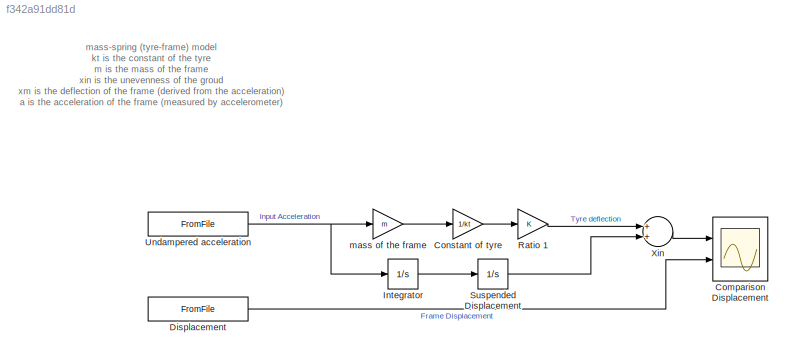
MODEL slx_f342a91dd81d
KIND model
CONFIG AbsTol = auto
CONFIG FixedStep = auto
CONFIG MaxStep = auto
CONFIG MinStep = auto
CONFIG RelTol = 1e-3
CONFIG SampleTimeConstraint = Unconstrained
CONFIG Solver = VariableStepAuto
CONFIG SolverMode = SingleTasking
CONFIG SolverName = VariableStepAuto
CONFIG StartTime = 0.0
CONFIG StopTime = 92
BLOCK [Scope] Comparison Displacement
  NumInputPorts = 2
  Ports = [2]
  ScopeSpecificationString = Simulink.scopes.TimeScopeBlockCfg('CurrentConfiguration', extmgr.ConfigurationSet(extmgr.Configuration('Core','General UI',true,'FigureColor',[1 1 1]),extmgr.Configuration('Core','Source UI',true),extmgr.Configuration('Sources','WiredSimulink',true,'SampleTime','1/3200'),extmgr.Configuration('Visuals','Time Domain',true,'PlotType','Line','SerializedDisplays',{struct('MinYLimReal','-0.0747','MaxYLi...<+2116ch>
BLOCK [Gain] Constant of tyre
  Gain = 1/kt
  OutDataTypeStr = Inherit: Inherit via internal rule
  ParamDataTypeStr = Inherit: Inherit via internal rule
  SaturateOnIntegerOverflow = off
BLOCK [FromFile] Displacement
  ExtrapolationAfterLastDataPoint = Hold last value
  ExtrapolationBeforeFirstDataPoint = Hold first value
  FileName = REC0826ch2_dis.mat
  SampleTime = 1/3200
BLOCK [Integrator] Integrator
  Ports = [1, 1]
BLOCK [Gain] Ratio 1
  OutDataTypeStr = Inherit: Inherit via internal rule
  ParamDataTypeStr = Inherit: Inherit via internal rule
  SaturateOnIntegerOverflow = off
BLOCK [Integrator] Suspended Displacement
  Ports = [1, 1]
BLOCK [FromFile] Undampered acceleration
  ExtrapolationAfterLastDataPoint = Hold last value
  ExtrapolationBeforeFirstDataPoint = Hold first value
  FileName = REC0826_filteracce.mat
  SampleTime = 1/3200
BLOCK [Sum] Xin
  InputSameDT = off
  OutDataTypeStr = Inherit: Inherit via internal rule
  Ports = [2, 1]
  SaturateOnIntegerOverflow = off
BLOCK [Gain] mass of the frame
  Gain = m
  OutDataTypeStr = Inherit: Inherit via internal rule
  ParamDataTypeStr = Inherit: Inherit via internal rule
  SaturateOnIntegerOverflow = off
ANNOTATION (root): mass-spring (tyre-frame) model kt is the constant of the tyre m is the mass of the frame xin is the unevenness of the groud xm is the deflection of the frame (derived from the acceleration) a is the acceleration of the frame (measured by accelerometer) ma = (xin - xm)*kt Hence: xin =ma/kt + xm Designed by: Mengbin Min 24/01/2018 Checked by:
LINE Constant of tyre:1 -> Ratio 1:1
LINE Displacement:1 -> Comparison Displacement:2
LINE Integrator:1 -> Suspended Displacement:1
LINE Ratio 1:1 -> Xin:1
LINE Suspended Displacement:1 -> Xin:2
NET Undampered acceleration:1 -> Integrator:1, mass of the frame:1
LINE Xin:1 -> Comparison Displacement:1
LINE mass of the frame:1 -> Constant of tyre:1
note: NET lines group one-source signal fan-out (src -> all destinations, sorted); 1:1 wires keep LINE
